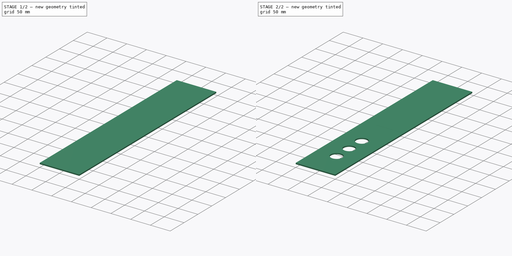
[diagram: build sequence overview — one tinted view per stage of 2, left to right]
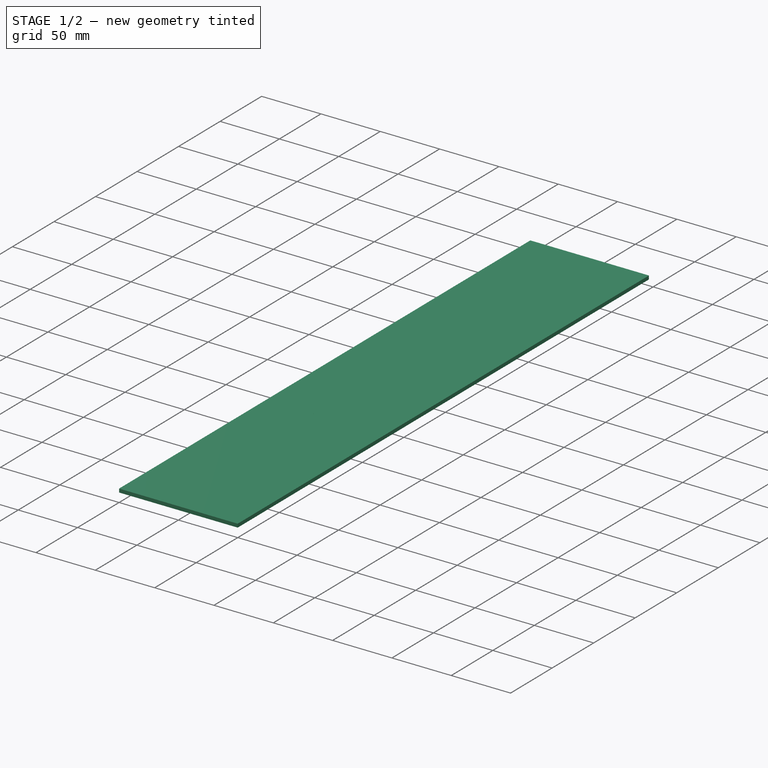
[diagram: stage 1 of 2 — iso view after this stage's code; geometry added in this stage tinted green]
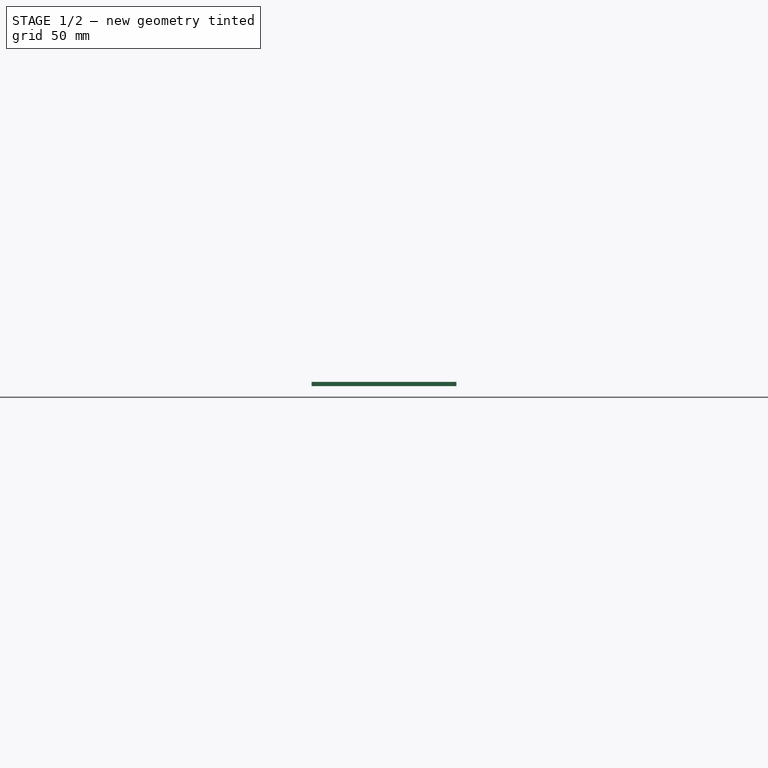
[diagram: stage 1 of 2 — front view after this stage's code; geometry added in this stage tinted green]
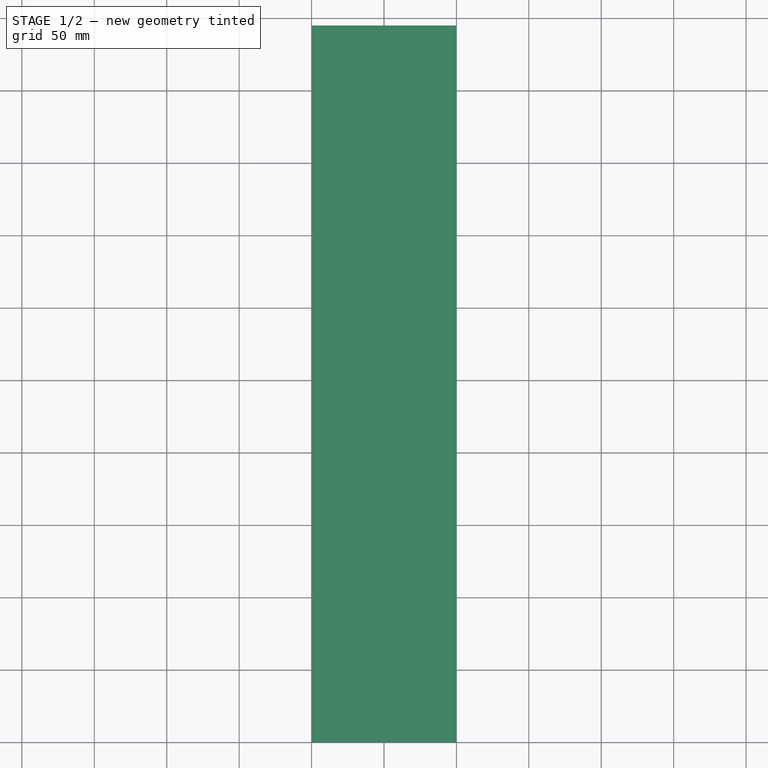
[diagram: stage 1 of 2 — top view after this stage's code; geometry added in this stage tinted green]
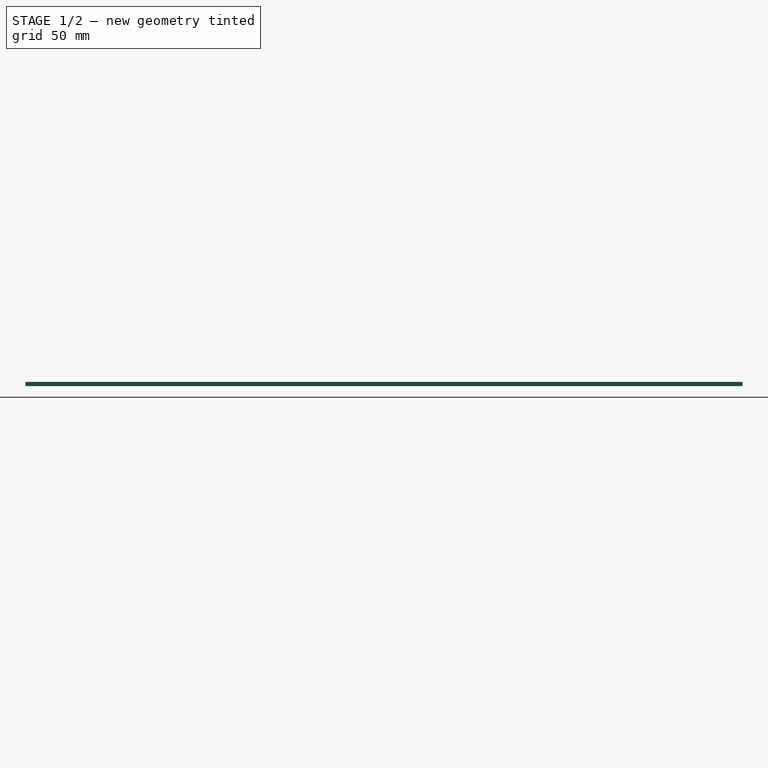
[diagram: stage 1 of 2 — right view after this stage's code; geometry added in this stage tinted green]
FCSTD DOCUMENT  (FreeCAD 0.20R29177 (Git))
Label: 1001_keyboard_500_3_Vertical_LASER
License: All rights reserved
LicenseURL: http://en.wikipedia.org/wiki/All_rights_reserved
objects: Sketcher::SketchObject×2, PartDesign::Pad×1, PartDesign::Pocket×1, PartDesign::Body×1, Part::FeaturePython×1
note: 8 computed .brp shape members not serialized (recipe doc carries the construction recipe); baked Part::Feature solids carry a one-line shape summary decoded from their .brp

FEATURE [Sketcher::SketchObject] Sketch
  FullyConstrained = true
  MapMode = 5
  Support = -> [XY_Plane]
  sketch-geometry (5):
    g0: LineSegment StartX=0 StartY=495 StartZ=0 EndX=100 EndY=495 EndZ=0
    g1: LineSegment StartX=100 StartY=495 StartZ=0 EndX=100 EndY=0 EndZ=0
    g2: LineSegment StartX=100 StartY=0 StartZ=0 EndX=0 EndY=0 EndZ=0
    g3: LineSegment StartX=0 StartY=0 StartZ=0 EndX=0 EndY=247.5 EndZ=0
    g4: LineSegment StartX=0 StartY=247.5 StartZ=0 EndX=0 EndY=495 EndZ=0
  constraints (14):
    c: Coincident(g0,g1)
    c: Coincident(g1,g2)
    c: Horizontal(g0)
    c: Horizontal(g2)
    c: Vertical(g1)
    c: DistanceY(g1,g1) = 495
    c: DistanceX(g0,g0) = 100
    c: Coincident(g3,g2)
    c: Coincident(g4,g0)
    c: Equal(g3,g4)
    c: Vertical(g4)
    c: Vertical(g3)
    c: Coincident(g3,g4)
    c: Coincident(g2,g-1)
FEATURE [PartDesign::Pad] Pad
  AllowMultiFace = false
  Direction = (0,0,1)
  Length = 3
  Length2 = 100
  Profile = -> Sketch
  ReferenceAxis = -> Sketch [N_Axis]
  Type = 0
FEATURE [PartDesign::Body] Body
  Group = -> [Sketch,Pad,Sketch001,Pocket]
  Origin = -> Origin
  Tip = -> Pocket
FEATURE [Part::FeaturePython] b_1001_keyboard_500_3_Vertical_LASER_001_  label="1001_keyboard_500_3_Vertical_LASER_001"  # a2plus imported part (geometry in sourceFile) (typed FeaturePython)
  a2p_Version = V0.1
  fixedPosition = true
  objectType = a2pPart
  sourceFile = .\1001_keyboard_500_3_Vertical_LASER.FCStd
  subassemblyImport = false
  timeLastImport = 1.6655e+09
  updateColors = true
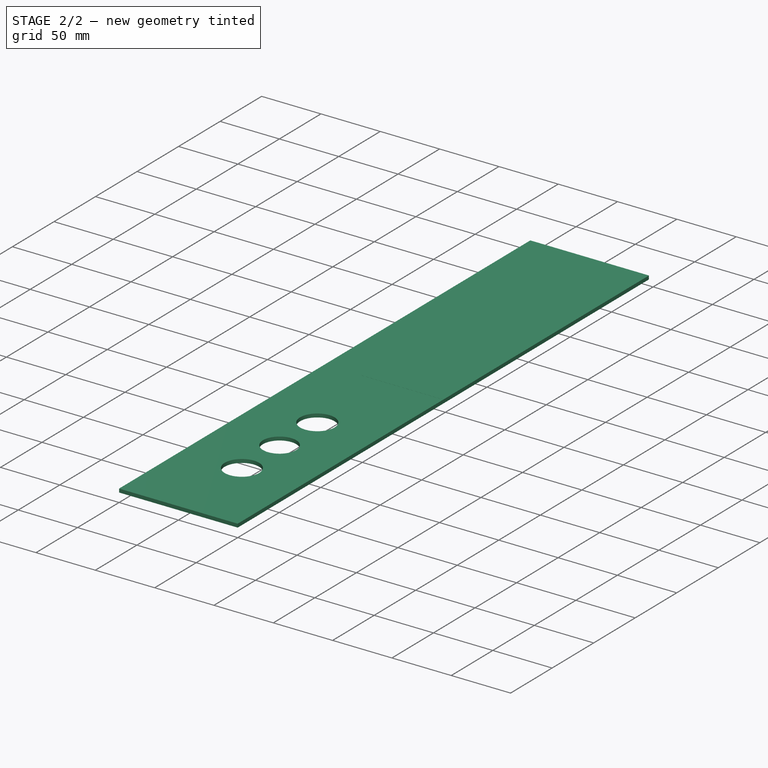
[diagram: stage 2 of 2 — iso view after this stage's code; geometry added in this stage tinted green]
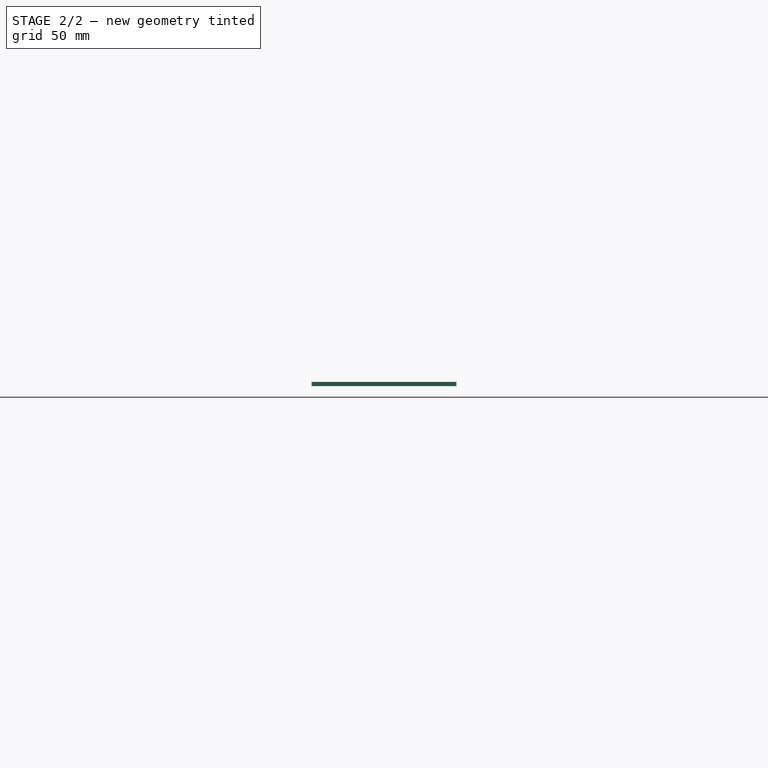
[diagram: stage 2 of 2 — front view after this stage's code; geometry added in this stage tinted green]
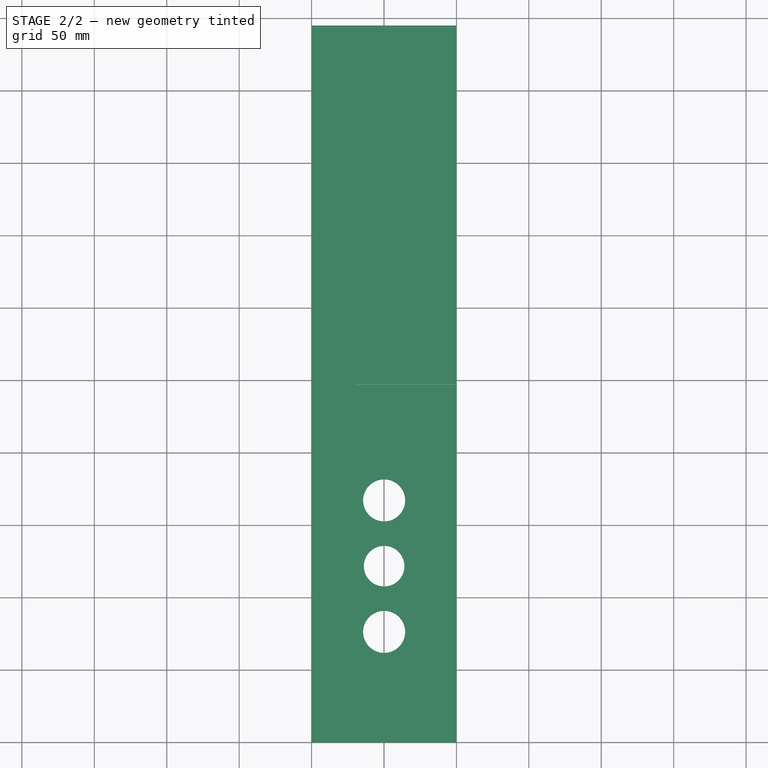
[diagram: stage 2 of 2 — top view after this stage's code; geometry added in this stage tinted green]
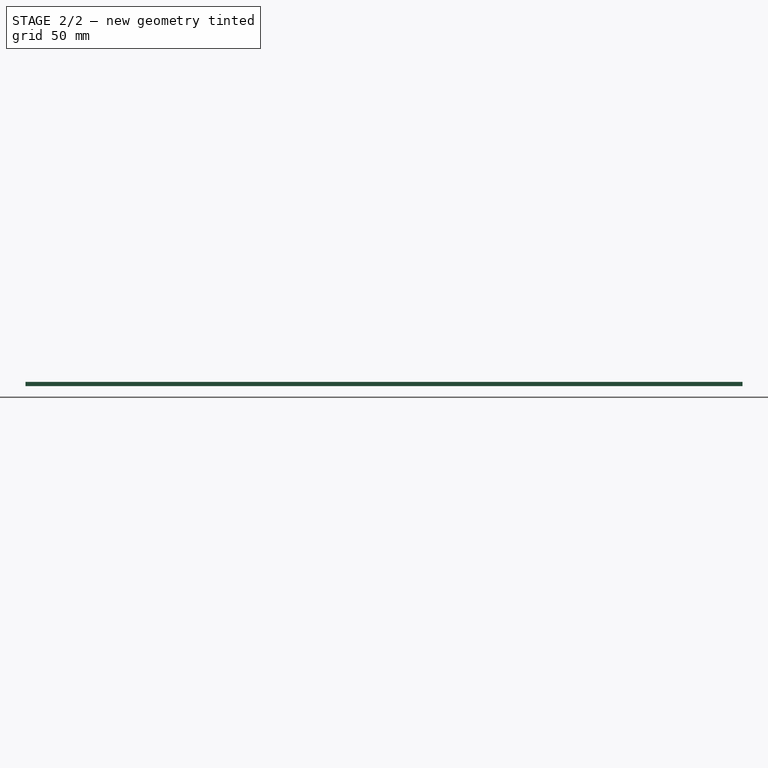
[diagram: stage 2 of 2 — right view after this stage's code; geometry added in this stage tinted green]
FEATURE [Sketcher::SketchObject] Sketch001
  ExternalGeometry = -> [Pad]
  FullyConstrained = false
  MapMode = 5
  Placement = pos=(0,0,3) rot=(0,0,1;0rad)
  Support = -> [Pad]
  sketch-geometry (20):
    g0: LineSegment StartX=0 StartY=495 StartZ=0 EndX=25 EndY=495 EndZ=0
    g1: LineSegment StartX=25 StartY=0 StartZ=0 EndX=0 EndY=0 EndZ=0
    g2: LineSegment StartX=0 StartY=0 StartZ=0 EndX=0 EndY=495 EndZ=0
    g3: LineSegment StartX=25 StartY=495 StartZ=0 EndX=100 EndY=495 EndZ=0
    g4: LineSegment StartX=100 StartY=495 StartZ=0 EndX=100 EndY=0 EndZ=0
    g5: LineSegment StartX=100 StartY=0 StartZ=0 EndX=25 EndY=0 EndZ=0
    g6: LineSegment StartX=25 StartY=495 StartZ=0 EndX=25 EndY=247.5 EndZ=0
    g7: LineSegment StartX=25 StartY=247.5 StartZ=0 EndX=25 EndY=0 EndZ=0
    g8: LineSegment StartX=25 StartY=247.5 StartZ=0 EndX=100 EndY=247.5 EndZ=0
    g9: Circle CenterX=50.1 CenterY=76.3217 CenterZ=0 NormalX=0 NormalY=0 NormalZ=1 AngleXU=0 Radius=14.5
    g10: Circle CenterX=50.1 CenterY=167.105 CenterZ=0 NormalX=0 NormalY=0 NormalZ=1 AngleXU=0 Radius=14.5
    g11: LineSegment StartX=30.5648 StartY=247.53 StartZ=0 EndX=99.6021 EndY=247.53 EndZ=0
    g12: LineSegment StartX=99.6021 StartY=247.53 StartZ=0 EndX=99.6021 EndY=247.43 EndZ=0
    g13: LineSegment StartX=99.6021 StartY=247.43 StartZ=0 EndX=30.5648 EndY=247.43 EndZ=0
    g14: LineSegment StartX=30.5648 StartY=247.43 StartZ=0 EndX=30.5648 EndY=247.53 EndZ=0
    g15: LineSegment StartX=50.1 StartY=76.3217 StartZ=0 EndX=50.1 EndY=121.713 EndZ=0
    g16: LineSegment StartX=50.1 StartY=121.713 StartZ=0 EndX=50.1 EndY=167.105 EndZ=0
    g17: Circle CenterX=50.1 CenterY=121.713 CenterZ=0 NormalX=0 NormalY=0 NormalZ=1 AngleXU=0 Radius=14
    g18: LineSegment StartX=99.6021 StartY=247.43 StartZ=0 EndX=99.6887 EndY=247.48 EndZ=0
    g19: LineSegment StartX=99.6887 StartY=247.48 StartZ=0 EndX=99.6021 EndY=247.53 EndZ=0
  constraints (47):
    c: Coincident(g1,g2)
    c: Coincident(g2,g0)
    c: Horizontal(g0)
    c: Horizontal(g1)
    c: Vertical(g2)
    c: PointOnObject(g1,g-1)
    c: Coincident(g3,g4)
    c: Coincident(g4,g5)
    c: Horizontal(g5)
    c: Vertical(g4)
    c: Coincident(g3,g0)
    c: PointOnObject(g4,g-1)
    c: DistanceX(g0,g0) = 25
    c: Coincident(g3,g-3)
    c: Coincident(g0,g-4)
    c: Coincident(g6,g0)
    c: Coincident(g7,g6)
    c: Coincident(g7,g1)
    c: Vertical(g7)
    c: Equal(g7,g6)
    c: Vertical(g6)
    c: Coincident(g8,g6)
    c: PointOnObject(g8,g4)
    c: Horizontal(g8)
    c: Equal(g10,g9)
    c: Coincident(g11,g12)
    c: Coincident(g12,g13)
    c: Coincident(g13,g14)
    c: Coincident(g14,g11)
    c: Horizontal(g11)
    c: Horizontal(g13)
    c: Vertical(g12)
    c: Vertical(g14)
    c: DistanceY(g14,g14) = 0.1
    c: Coincident(g15,g9)
    c: Coincident(g16,g10)
    c: Vertical(g15)
    c: Equal(g15,g16)
    c: Parallel(g15,g16)
    c: Coincident(g17,g15)
    c: Diameter(g17) = 28
    c: Coincident(g17,g16)
    c: Coincident(g18,g12)
    c: Coincident(g19,g18)
    c: Coincident(g19,g11)
    c: Equal(g19,g18)
    c: Equal(g12,g18)
FEATURE [PartDesign::Pocket] Pocket
  BaseFeature = -> Pad
  Direction = (0,0,-1)
  Length = 5
  Length2 = 5
  Profile = -> Sketch001
  ReferenceAxis = -> Sketch001 [N_Axis]
  Type = 1
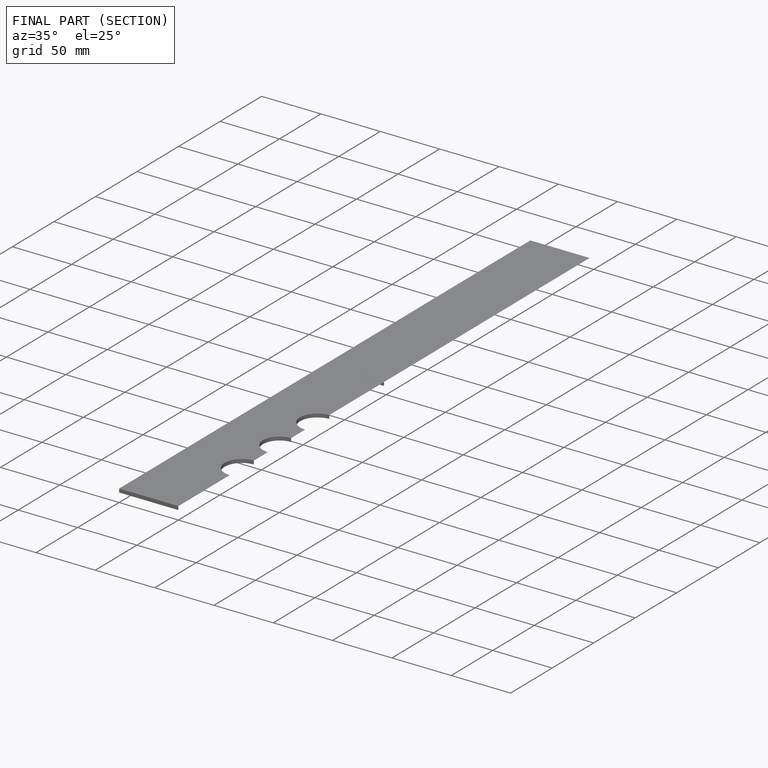
[diagram: finished part — half-section view (interior)]
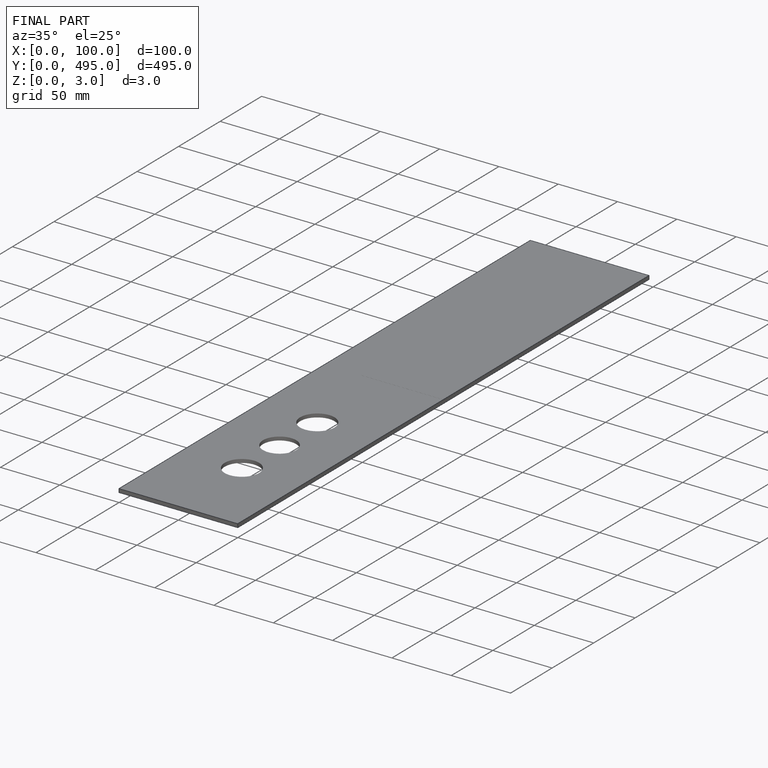
[diagram: finished part — iso view with bounding-box wireframe]
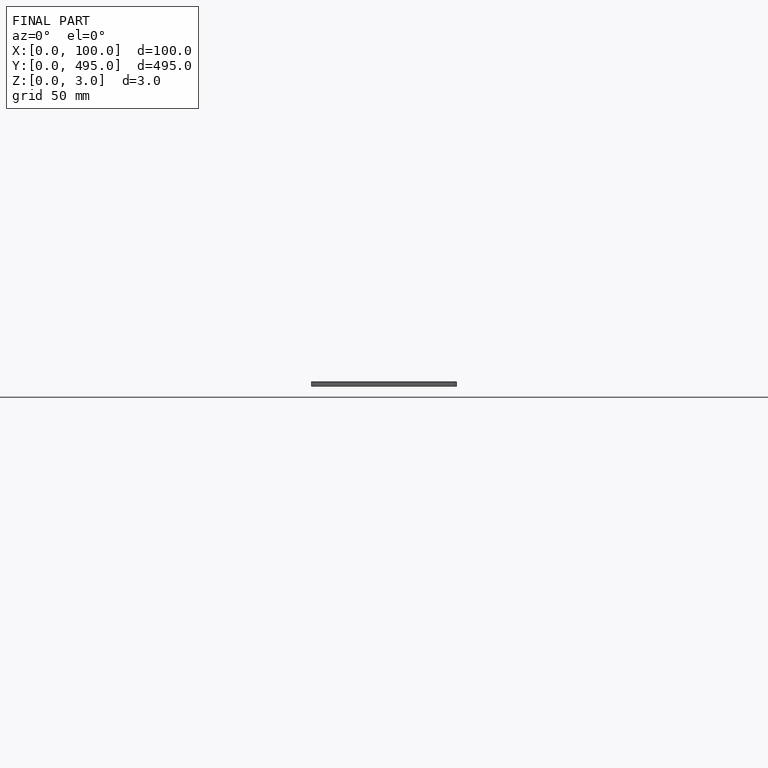
[diagram: finished part — front view with bounding-box wireframe]
